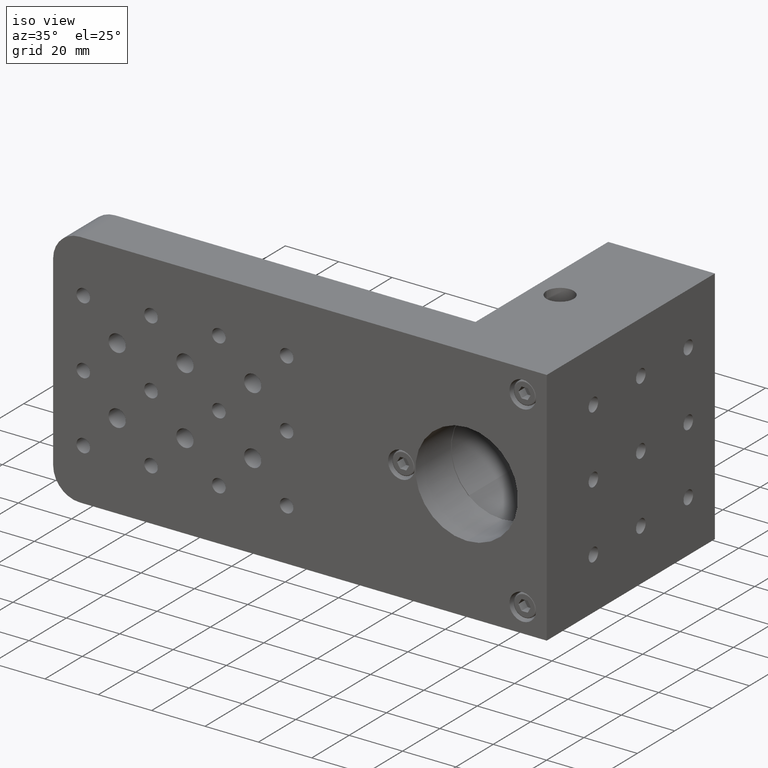
[diagram: clean part render]
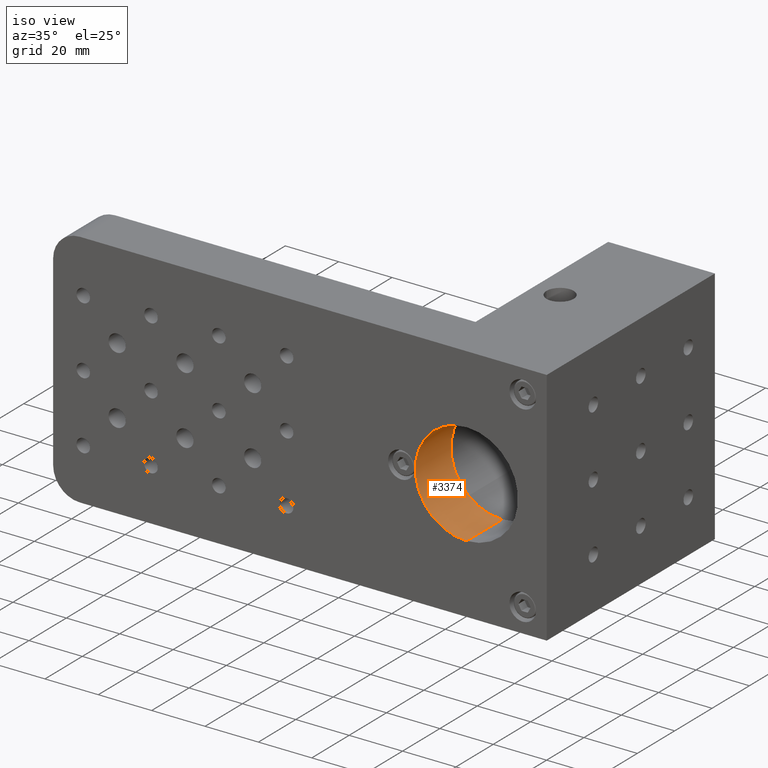
[diagram: same view with one face highlighted and labeled with its STEP entity id]
A machine part, iso view. The second image highlights one B-rep face of the part: STEP entity #3374.
In plain terms, the highlighted cylindrical surface (partial cylindrical patch) has radius 19.25 mm, axis along (-0, -1, -0).
Its self-contained STEP definition (entity closure, byte-faithful):
#89 = ORIENTED_EDGE ( 'NONE', *, *, #1225, .F. ) ;
#446 = AXIS2_PLACEMENT_3D ( 'NONE', #2690, #618, #3568 ) ;
#456 = VERTEX_POINT ( 'NONE', #4372 ) ;
#618 = DIRECTION ( 'NONE',  ( 0.0000000000000000000, 1.000000000000000000, 0.0000000000000000000 ) ) ;
#791 = EDGE_CURVE ( 'NONE', #456, #3892, #868, .T. ) ;
#816 = AXIS2_PLACEMENT_3D ( 'NONE', #3401, #1245, #3761 ) ;
#833 = DIRECTION ( 'NONE',  ( 0.0000000000000000000, 0.0000000000000000000, 1.000000000000000000 ) ) ;
#868 = CIRCLE ( 'NONE', #4051, 19.24999999999998900 ) ;
#1171 = VERTEX_POINT ( 'NONE', #3656 ) ;
#1225 = EDGE_CURVE ( 'NONE', #3017, #456, #3057, .T. ) ;
#1245 = DIRECTION ( 'NONE',  ( -0.0000000000000000000, -1.000000000000000000, -0.0000000000000000000 ) ) ;
#1272 = VECTOR ( 'NONE', #3710, 1000.000000000000000 ) ;
#1302 = CARTESIAN_POINT ( 'NONE',  ( 144.3969387244427500, 85.21460203965206400, 143.8158939252802800 ) ) ;
#1428 = CARTESIAN_POINT ( 'NONE',  ( 144.3969387244427500, 85.21460203965206400, 163.0658939252802500 ) ) ;
#1890 = ORIENTED_EDGE ( 'NONE', *, *, #2279, .T. ) ;
#2154 = CARTESIAN_POINT ( 'NONE',  ( 144.3969387244427500, 104.2146020396520600, 124.5658939252802600 ) ) ;
#2159 = FACE_OUTER_BOUND ( 'NONE', #2394, .T. ) ;
#2279 = EDGE_CURVE ( 'NONE', #1171, #3892, #3294, .T. ) ;
#2394 = EDGE_LOOP ( 'NONE', ( #5272, #1890, #5288, #89 ) ) ;
#2620 = CIRCLE ( 'NONE', #446, 19.24999999999998900 ) ;
#2690 = CARTESIAN_POINT ( 'NONE',  ( 144.3969387244427500, 104.2146020396520600, 143.8158939252802800 ) ) ;
#3017 = VERTEX_POINT ( 'NONE', #2154 ) ;
#3057 = LINE ( 'NONE', #4853, #3784 ) ;
#3156 = DIRECTION ( 'NONE',  ( -0.0000000000000000000, -1.000000000000000000, -0.0000000000000000000 ) ) ;
#3294 = LINE ( 'NONE', #3694, #1272 ) ;
#3374 = ADVANCED_FACE ( 'NONE', ( #2159 ), #3996, .F. ) ;
#3401 = CARTESIAN_POINT ( 'NONE',  ( 144.3969387244427500, 104.2146020396520600, 143.8158939252802800 ) ) ;
#3568 = DIRECTION ( 'NONE',  ( 0.0000000000000000000, 0.0000000000000000000, 1.000000000000000000 ) ) ;
#3656 = CARTESIAN_POINT ( 'NONE',  ( 144.3969387244427500, 104.2146020396520600, 163.0658939252802500 ) ) ;
#3694 = CARTESIAN_POINT ( 'NONE',  ( 144.3969387244427500, 104.2146020396520600, 163.0658939252802500 ) ) ;
#3710 = DIRECTION ( 'NONE',  ( -0.0000000000000000000, -1.000000000000000000, -0.0000000000000000000 ) ) ;
#3744 = DIRECTION ( 'NONE',  ( 0.0000000000000000000, 1.000000000000000000, 0.0000000000000000000 ) ) ;
#3761 = DIRECTION ( 'NONE',  ( 0.0000000000000000000, 0.0000000000000000000, -1.000000000000000000 ) ) ;
#3784 = VECTOR ( 'NONE', #3156, 1000.000000000000000 ) ;
#3834 = EDGE_CURVE ( 'NONE', #3017, #1171, #2620, .T. ) ;
#3892 = VERTEX_POINT ( 'NONE', #1428 ) ;
#3996 = CYLINDRICAL_SURFACE ( 'NONE', #816, 19.25000000000000400 ) ;
#4051 = AXIS2_PLACEMENT_3D ( 'NONE', #1302, #3744, #833 ) ;
#4372 = CARTESIAN_POINT ( 'NONE',  ( 144.3969387244427500, 85.21460203965206400, 124.5658939252802600 ) ) ;
#4853 = CARTESIAN_POINT ( 'NONE',  ( 144.3969387244427500, 104.2146020396520600, 124.5658939252802600 ) ) ;
#5272 = ORIENTED_EDGE ( 'NONE', *, *, #3834, .T. ) ;
#5288 = ORIENTED_EDGE ( 'NONE', *, *, #791, .F. ) ;